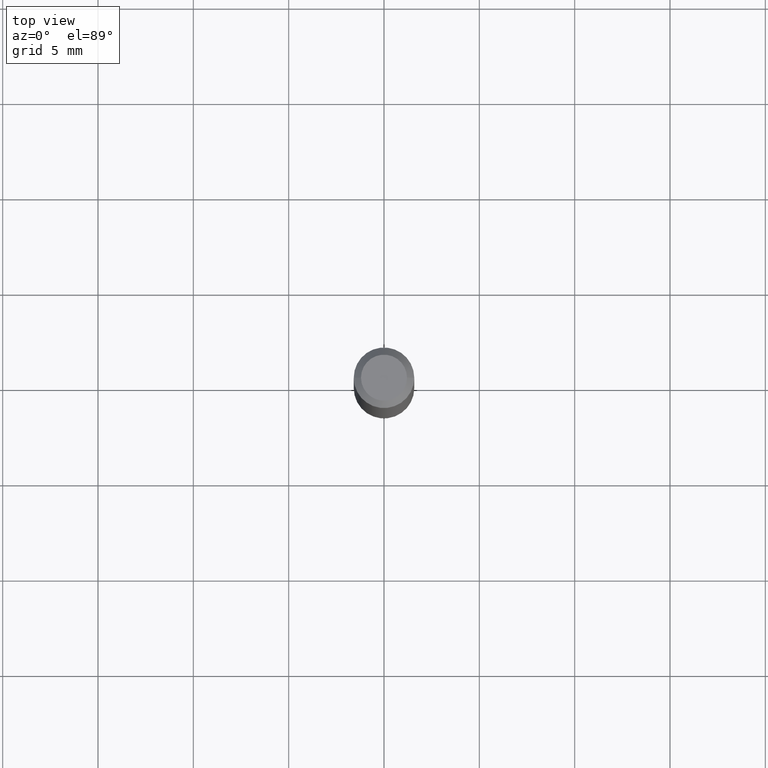
[diagram: clean part render]
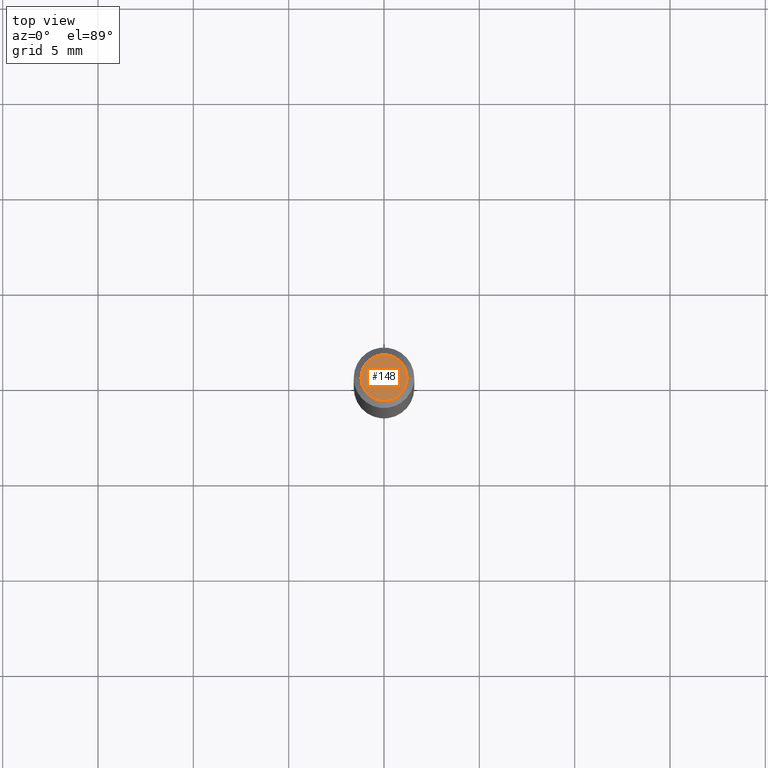
[diagram: same view with one face highlighted and labeled with its STEP entity id]
A machine part, top view. The second image highlights one B-rep face of the part: STEP entity #148.
In plain terms, the highlighted planar face has unit normal (0, -0, -1).
Its self-contained STEP definition (entity closure, byte-faithful):
#24 = DIRECTION ( 'NONE',  ( 1.000000000000000000, -6.982962677686267499E-15, 4.852736867747366768E-29 ) ) ;
#47 = EDGE_LOOP ( 'NONE', ( #448, #457 ) ) ;
#55 = CARTESIAN_POINT ( 'NONE',  ( 1.873992581615772204E-44, -2.675564747051046294E-30, -7.663122002930588880E-16 ) ) ;
#99 = CIRCLE ( 'NONE', #438, 0.04749999999999999362 ) ;
#106 = EDGE_CURVE ( 'NONE', #256, #134, #395, .T. ) ;
#134 = VERTEX_POINT ( 'NONE', #157 ) ;
#148 = ADVANCED_FACE ( 'NONE', ( #275 ), #304, .F. ) ;
#157 = CARTESIAN_POINT ( 'NONE',  ( -0.04749999999999999362, 3.578768372314197194E-16, -7.663122002930613532E-16 ) ) ;
#170 = EDGE_CURVE ( 'NONE', #134, #256, #99, .T. ) ;
#235 = DIRECTION ( 'NONE',  ( -1.000000000000000000, 6.982962677686265922E-15, -4.876176775795935793E-29 ) ) ;
#239 = AXIS2_PLACEMENT_3D ( 'NONE', #340, #343, #24 ) ;
#256 = VERTEX_POINT ( 'NONE', #392 ) ;
#275 = FACE_OUTER_BOUND ( 'NONE', #47, .T. ) ;
#304 = PLANE ( 'NONE',  #375 ) ;
#340 = CARTESIAN_POINT ( 'NONE',  ( 1.873992581615772204E-44, -2.675564747051046294E-30, -7.663122002930588880E-16 ) ) ;
#343 = DIRECTION ( 'NONE',  ( -2.445468806185136597E-29, 3.491481338843145583E-15, 1.000000000000000000 ) ) ;
#375 = AXIS2_PLACEMENT_3D ( 'NONE', #417, #419, #235 ) ;
#383 = DIRECTION ( 'NONE',  ( -2.445468806185136597E-29, 3.491481338843145583E-15, 1.000000000000000000 ) ) ;
#392 = CARTESIAN_POINT ( 'NONE',  ( 0.04749999999999999362, -4.035134999187591935E-16, -7.663122002930563242E-16 ) ) ;
#395 = CIRCLE ( 'NONE', #239, 0.04749999999999999362 ) ;
#413 = DIRECTION ( 'NONE',  ( 1.000000000000000000, -6.982962677686267499E-15, 4.852736867747366768E-29 ) ) ;
#417 = CARTESIAN_POINT ( 'NONE',  ( 3.316907271900976096E-16, 0.04749999999999999362, -5.490014637415788897E-16 ) ) ;
#419 = DIRECTION ( 'NONE',  ( 2.438088387897960049E-29, -3.491481338843145188E-15, -1.000000000000000000 ) ) ;
#438 = AXIS2_PLACEMENT_3D ( 'NONE', #55, #383, #413 ) ;
#448 = ORIENTED_EDGE ( 'NONE', *, *, #170, .T. ) ;
#457 = ORIENTED_EDGE ( 'NONE', *, *, #106, .T. ) ;